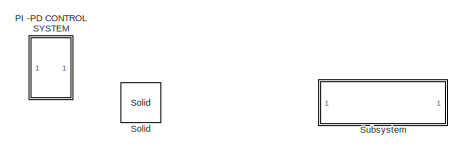
[diagram: root canvas - part 1/2, top right region]
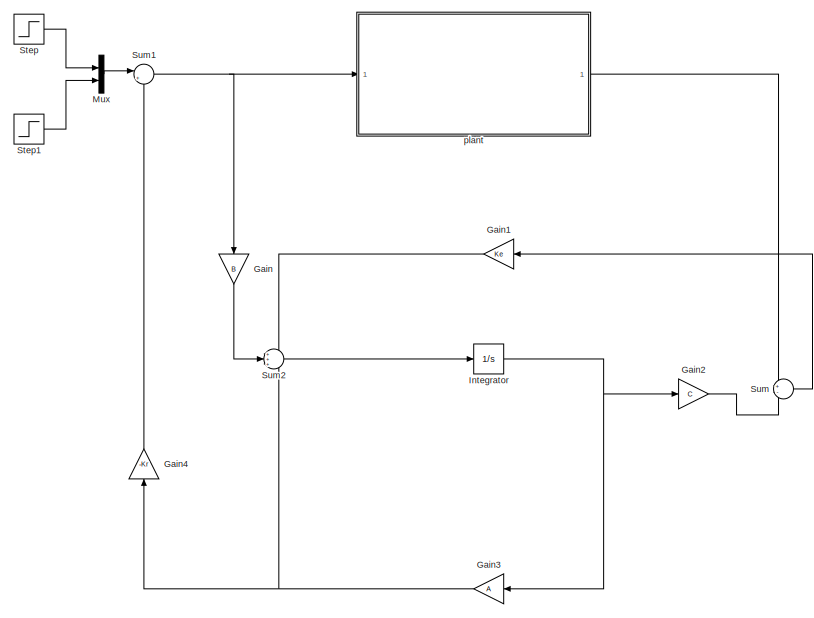
[diagram: root canvas - part 2/2, middle left region]
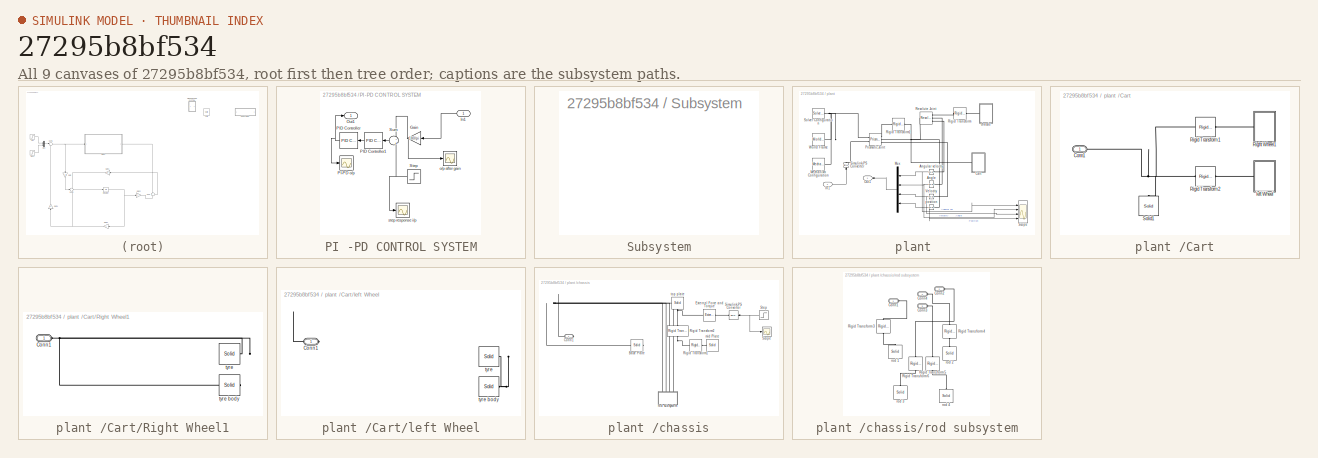
[diagram: thumbnail index - all 9 canvases of the model, root first then tree order]
MODEL slx_27295b8bf534
KIND model
CONFIG AbsTol = auto
CONFIG EnableMultiTasking = on
CONFIG FixedStep = auto
CONFIG MaxStep = auto
CONFIG MinStep = auto
CONFIG RelTol = 1e-3
CONFIG SampleTimeConstraint = Unconstrained
CONFIG Solver = VariableStepAuto
CONFIG SolverName = VariableStepAuto
CONFIG StartTime = 0.0
CONFIG StopTime = 10.0
BLOCK [Gain] Gain
  Gain = B
  Multiplication = Matrix(K*u)
  OutDataTypeStr = Inherit: Inherit via internal rule
  ParamDataTypeStr = Inherit: Inherit via internal rule
  SaturateOnIntegerOverflow = off
BLOCK [Gain] Gain1
  Gain = Ke
  Multiplication = Matrix(K*u)
  OutDataTypeStr = Inherit: Inherit via internal rule
  ParamDataTypeStr = Inherit: Inherit via internal rule
  SaturateOnIntegerOverflow = off
BLOCK [Gain] Gain2
  Gain = C
  Multiplication = Matrix(K*u)
  OutDataTypeStr = Inherit: Inherit via internal rule
  ParamDataTypeStr = Inherit: Inherit via internal rule
  SaturateOnIntegerOverflow = off
BLOCK [Gain] Gain3
  Gain = A
  Multiplication = Matrix(K*u)
  OutDataTypeStr = Inherit: Inherit via internal rule
  ParamDataTypeStr = Inherit: Inherit via internal rule
  SaturateOnIntegerOverflow = off
BLOCK [Gain] Gain4
  Gain = -Kr
  Multiplication = Matrix(K*u)
  OutDataTypeStr = Inherit: Inherit via internal rule
  ParamDataTypeStr = Inherit: Inherit via internal rule
  SaturateOnIntegerOverflow = off
BLOCK [Integrator] Integrator
  Ports = [1, 1]
BLOCK [Mux] Mux
  DisplayOption = bar
  Inputs = 2
  Ports = [2, 1]
BLOCK [SubSystem] PI -PD CONTROL SYSTEM
  Commented = on
  Ports = [1, 1]
  RequestExecContextInheritance = off
BLOCK [Scope] PI -PD CONTROL SYSTEM/	PI-PD o//p
  Floating = off
  NumInputPorts = 1
  Ports = [1]
  ScopeSpecificationString = Simulink.scopes.TimeScopeBlockCfg('CurrentConfiguration', extmgr.ConfigurationSet(extmgr.Configuration('Core','General UI',true),extmgr.Configuration('Core','Source UI',true),extmgr.Configuration('Sources','WiredSimulink',true),extmgr.Configuration('Visuals','Time Domain',true,'SerializedDisplays',{struct('MinYLimReal','-27.44517','MaxYLimReal','29.71613','YLabelReal','','MinYLimMag','0.00000','Ma...<+1353ch>
BLOCK [Gain] PI -PD CONTROL SYSTEM/Gain
  Gain = 180/pi
  OutDataTypeStr = Inherit: Inherit via internal rule
  ParamDataTypeStr = Inherit: Inherit via internal rule
  SaturateOnIntegerOverflow = off
BLOCK [Inport] PI -PD CONTROL SYSTEM/In1
  IconDisplay = Port number
BLOCK [Outport] PI -PD CONTROL SYSTEM/Out1
  IconDisplay = Port number
BLOCK [Reference] PI -PD CONTROL SYSTEM/PID Controller  REF=simulink/Continuous/PID Controller
  Ports = [1, 1]
  SourceBlock = simulink/Continuous/PID Controller
  SourceProductBaseCode = SL
  SourceProductName = Simulink
  SourceType = PID 1dof
BLOCK [Reference] PI -PD CONTROL SYSTEM/PID Controller1  REF=simulink/Continuous/PID Controller
  Ports = [1, 1]
  SourceBlock = simulink/Continuous/PID Controller
  SourceProductBaseCode = SL
  SourceProductName = Simulink
  SourceType = PID 1dof
BLOCK [Step] PI -PD CONTROL SYSTEM/Step
  After = 0
  Before = 1
  SampleTime = 0
  Time = 0.01
BLOCK [Sum] PI -PD CONTROL SYSTEM/Sum
  IconShape = round
  InputSameDT = off
  Inputs = -+
  OutDataTypeStr = Inherit: Inherit via internal rule
  Ports = [2, 1]
  SaturateOnIntegerOverflow = off
BLOCK [Scope] PI -PD CONTROL SYSTEM/o//p after gain 
  Floating = off
  NumInputPorts = 1
  Ports = [1]
  ScopeSpecificationString = Simulink.scopes.TimeScopeBlockCfg('CurrentConfiguration', extmgr.ConfigurationSet(extmgr.Configuration('Core','General UI',true),extmgr.Configuration('Core','Source UI',true),extmgr.Configuration('Sources','WiredSimulink',true,'DataLoggingVariableName','ScopeData2'),extmgr.Configuration('Visuals','Time Domain',true,'SerializedDisplays',{struct('MinYLimReal','-151.46736','MaxYLimReal','16.82971','Y...<+1404ch>
BLOCK [Scope] PI -PD CONTROL SYSTEM/step response i//p
  Floating = off
  NumInputPorts = 1
  Ports = [1]
  ScopeSpecificationString = Simulink.scopes.TimeScopeBlockCfg('CurrentConfiguration', extmgr.ConfigurationSet(extmgr.Configuration('Core','General UI',true),extmgr.Configuration('Core','Source UI',true),extmgr.Configuration('Sources','WiredSimulink',true,'DataLoggingVariableName','ScopeData3'),extmgr.Configuration('Visuals','Time Domain',true,'SerializedDisplays',{struct('MinYLimReal','-0.125','MaxYLimReal','1.125','YLabelRe...<+1351ch>
BLOCK [Reference] Solid  REF=sm_lib/Body Elements/Solid
  Commented = on
  Ports = [0, 0, 0, 0, 0, 0, 1]
  SourceBlock = sm_lib/Body Elements/Solid
  SourceProductBaseCode = MS
  SourceProductName = Simscape Multibody
  SourceType = Solid
BLOCK [Step] Step
  SampleTime = 0
BLOCK [Step] Step1
  SampleTime = 0
BLOCK [SubSystem] Subsystem
  Commented = on
  OpenFcn = open_system('sm_lib')
  Ports = []
  RequestExecContextInheritance = off
  ShowPortLabels = none
BLOCK [Sum] Sum
  IconShape = round
  InputSameDT = off
  Inputs = +-
  OutDataTypeStr = Inherit: Inherit via internal rule
  Ports = [2, 1]
  SaturateOnIntegerOverflow = off
BLOCK [Sum] Sum1
  IconShape = round
  InputSameDT = off
  Inputs = |++
  OutDataTypeStr = Inherit: Inherit via internal rule
  Ports = [2, 1]
  SaturateOnIntegerOverflow = off
BLOCK [Sum] Sum2
  IconShape = round
  InputSameDT = off
  Inputs = +++
  OutDataTypeStr = Inherit: Inherit via internal rule
  Ports = [3, 1]
  SaturateOnIntegerOverflow = off
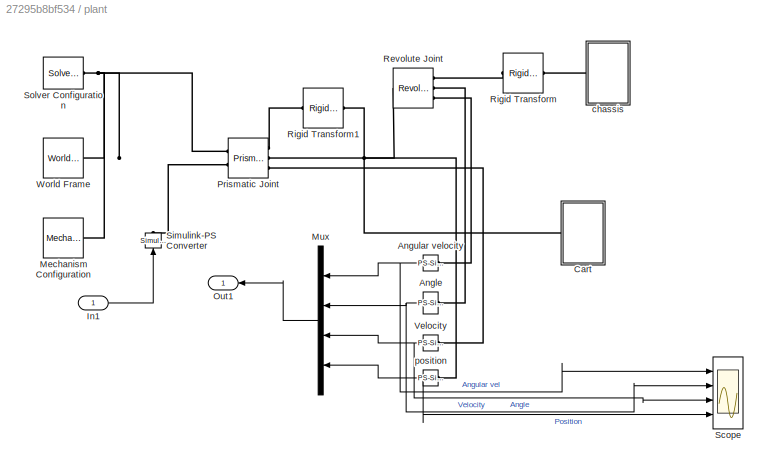
BLOCK [SubSystem] plant 
  Ports = [1, 1]
  RequestExecContextInheritance = off
BLOCK [Reference] plant /Angle  REF=nesl_utility/PS-Simulink
Converter
  Ports = [0, 1, 0, 0, 0, 1]
  SourceBlock = nesl_utility/PS-Simulink\nConverter
  SourceProductBaseCode = SS
  SourceProductName = Simscape
  SourceType = PS-Simulink\nConverter
BLOCK [Reference] plant /Angular velocity  REF=nesl_utility/PS-Simulink
Converter
  Ports = [0, 1, 0, 0, 0, 1]
  SourceBlock = nesl_utility/PS-Simulink\nConverter
  SourceProductBaseCode = SS
  SourceProductName = Simscape
  SourceType = PS-Simulink\nConverter
BLOCK [SubSystem] plant /Cart
  Ports = [0, 0, 0, 0, 0, 1]
  RequestExecContextInheritance = off
BLOCK [PMIOPort] plant /Cart/Conn1
  Side = Left
BLOCK [SubSystem] plant /Cart/Right Wheel1
  Ports = [0, 0, 0, 0, 0, 1]
  RequestExecContextInheritance = off
BLOCK [PMIOPort] plant /Cart/Right Wheel1/Conn1
  Side = Left
BLOCK [Reference] plant /Cart/Right Wheel1/tyre  REF=sm_lib/Body Elements/Solid
  Ports = [0, 0, 0, 0, 0, 0, 1]
  SourceBlock = sm_lib/Body Elements/Solid
  SourceProductBaseCode = MS
  SourceProductName = Simscape Multibody
  SourceType = Solid
BLOCK [Reference] plant /Cart/Right Wheel1/tyre body  REF=sm_lib/Body Elements/Solid
  Ports = [0, 0, 0, 0, 0, 0, 1]
  SourceBlock = sm_lib/Body Elements/Solid
  SourceProductBaseCode = MS
  SourceProductName = Simscape Multibody
  SourceType = Solid
BLOCK [Reference] plant /Cart/Rigid Transform1  REF=sm_lib/Frames and
Transforms/Rigid
Transform
  Ports = [0, 0, 0, 0, 0, 1, 1]
  SourceBlock = sm_lib/Frames and\nTransforms/Rigid\nTransform
  SourceProductBaseCode = MS
  SourceProductName = Simscape Multibody
  SourceType = Rigid\nTransform
BLOCK [Reference] plant /Cart/Rigid Transform2  REF=sm_lib/Frames and
Transforms/Rigid
Transform
  Ports = [0, 0, 0, 0, 0, 1, 1]
  SourceBlock = sm_lib/Frames and\nTransforms/Rigid\nTransform
  SourceProductBaseCode = MS
  SourceProductName = Simscape Multibody
  SourceType = Rigid\nTransform
BLOCK [Reference] plant /Cart/Solid1  REF=sm_lib/Body Elements/Solid
  Ports = [0, 0, 0, 0, 0, 0, 1]
  SourceBlock = sm_lib/Body Elements/Solid
  SourceProductBaseCode = MS
  SourceProductName = Simscape Multibody
  SourceType = Solid
BLOCK [SubSystem] plant /Cart/left Wheel
  Ports = [0, 0, 0, 0, 0, 1]
  RequestExecContextInheritance = off
BLOCK [PMIOPort] plant /Cart/left Wheel/Conn1
  Side = Left
BLOCK [Reference] plant /Cart/left Wheel/tyre  REF=sm_lib/Body Elements/Solid
  Ports = [0, 0, 0, 0, 0, 0, 1]
  SourceBlock = sm_lib/Body Elements/Solid
  SourceProductBaseCode = MS
  SourceProductName = Simscape Multibody
  SourceType = Solid
BLOCK [Reference] plant /Cart/left Wheel/tyre body  REF=sm_lib/Body Elements/Solid
  Ports = [0, 0, 0, 0, 0, 0, 1]
  SourceBlock = sm_lib/Body Elements/Solid
  SourceProductBaseCode = MS
  SourceProductName = Simscape Multibody
  SourceType = Solid
BLOCK [Inport] plant /In1
  IconDisplay = Port number
BLOCK [Reference] plant /Mechanism Configuration  REF=sm_lib/Utilities/Mechanism
Configuration
  Ports = [0, 0, 0, 0, 0, 0, 1]
  SourceBlock = sm_lib/Utilities/Mechanism\nConfiguration
  SourceProductBaseCode = MS
  SourceProductName = Simscape Multibody
  SourceType = Mechanism\nConfiguration
BLOCK [Mux] plant /Mux
  DisplayOption = bar
  Ports = [4, 1]
BLOCK [Outport] plant /Out1
  IconDisplay = Port number
BLOCK [Reference] plant /Prismatic Joint  REF=sm_lib/Joints/Prismatic
Joint
  Ports = [0, 0, 0, 0, 0, 2, 3]
  SourceBlock = sm_lib/Joints/Prismatic\nJoint
  SourceProductBaseCode = MS
  SourceProductName = Simscape Multibody
  SourceType = Prismatic\nJoint
BLOCK [Reference] plant /Revolute Joint  REF=sm_lib/Joints/Revolute Joint
  Ports = [0, 0, 0, 0, 0, 1, 3]
  SourceBlock = sm_lib/Joints/Revolute Joint
  SourceProductBaseCode = MS
  SourceProductName = Simscape Multibody
  SourceType = Revolute Joint
BLOCK [Reference] plant /Rigid Transform  REF=sm_lib/Frames and
Transforms/Rigid
Transform
  Ports = [0, 0, 0, 0, 0, 1, 1]
  SourceBlock = sm_lib/Frames and\nTransforms/Rigid\nTransform
  SourceProductBaseCode = MS
  SourceProductName = Simscape Multibody
  SourceType = Rigid\nTransform
BLOCK [Reference] plant /Rigid Transform1  REF=sm_lib/Frames and
Transforms/Rigid
Transform
  Ports = [0, 0, 0, 0, 0, 1, 1]
  SourceBlock = sm_lib/Frames and\nTransforms/Rigid\nTransform
  SourceProductBaseCode = MS
  SourceProductName = Simscape Multibody
  SourceType = Rigid\nTransform
BLOCK [Scope] plant /Scope
  Floating = off
  NumInputPorts = 4
  Ports = [4]
  ScopeSpecificationString = Simulink.scopes.TimeScopeBlockCfg('CurrentConfiguration', extmgr.ConfigurationSet(extmgr.Configuration('Core','General UI',true),extmgr.Configuration('Core','Source UI',true),extmgr.Configuration('Sources','WiredSimulink',true,'DataLoggingVariableName','ScopeData1'),extmgr.Configuration('Visuals','Time Domain',true,'SerializedDisplays',{struct('MinYLimReal','-10','MaxYLimReal','10','YLabelReal',''...<+2991ch>
BLOCK [Reference] plant /Simulink-PS Converter  REF=nesl_utility/Simulink-PS
Converter
  Ports = [1, 0, 0, 0, 0, 0, 1]
  SourceBlock = nesl_utility/Simulink-PS\nConverter
  SourceProductBaseCode = SS
  SourceProductName = Simscape
  SourceType = Simulink-PS\nConverter
BLOCK [Reference] plant /Solver Configuration  REF=nesl_utility/Solver
Configuration
  Ports = [0, 0, 0, 0, 0, 0, 1]
  SourceBlock = nesl_utility/Solver\nConfiguration
  SourceProductBaseCode = SS
  SourceProductName = Simscape
  SourceType = Solver\nConfiguration
BLOCK [Reference] plant /Velocity  REF=nesl_utility/PS-Simulink
Converter
  Ports = [0, 1, 0, 0, 0, 1]
  SourceBlock = nesl_utility/PS-Simulink\nConverter
  SourceProductBaseCode = SS
  SourceProductName = Simscape
  SourceType = PS-Simulink\nConverter
BLOCK [Reference] plant /World Frame  REF=sm_lib/Frames and
Transforms/World Frame
  Ports = [0, 0, 0, 0, 0, 0, 1]
  SourceBlock = sm_lib/Frames and\nTransforms/World Frame
  SourceProductBaseCode = MS
  SourceProductName = Simscape Multibody
  SourceType = World Frame
BLOCK [SubSystem] plant /chassis
  Ports = [0, 0, 0, 0, 0, 1]
  RequestExecContextInheritance = off
BLOCK [Reference] plant /chassis/Base Plate  REF=sm_lib/Body Elements/Solid
  Ports = [0, 0, 0, 0, 0, 0, 1]
  SourceBlock = sm_lib/Body Elements/Solid
  SourceProductBaseCode = MS
  SourceProductName = Simscape Multibody
  SourceType = Solid
BLOCK [PMIOPort] plant /chassis/Conn1
  Side = Left
BLOCK [Reference] plant /chassis/External Force and Torque  REF=sm_lib/Forces and
Torques/External Force
and Torque
  Commented = on
  Ports = [0, 0, 0, 0, 0, 1, 1]
  SourceBlock = sm_lib/Forces and\nTorques/External Force\nand Torque
  SourceProductBaseCode = MS
  SourceProductName = Simscape Multibody
  SourceType = External Force\nand Torque
BLOCK [Reference] plant /chassis/Rigid Transform1  REF=sm_lib/Frames and
Transforms/Rigid
Transform
  Ports = [0, 0, 0, 0, 0, 1, 1]
  SourceBlock = sm_lib/Frames and\nTransforms/Rigid\nTransform
  SourceProductBaseCode = MS
  SourceProductName = Simscape Multibody
  SourceType = Rigid\nTransform
BLOCK [Reference] plant /chassis/Rigid Transform2  REF=sm_lib/Frames and
Transforms/Rigid
Transform
  Ports = [0, 0, 0, 0, 0, 1, 1]
  SourceBlock = sm_lib/Frames and\nTransforms/Rigid\nTransform
  SourceProductBaseCode = MS
  SourceProductName = Simscape Multibody
  SourceType = Rigid\nTransform
BLOCK [Scope] plant /chassis/Scope
  Commented = on
  Floating = off
  NumInputPorts = 1
  Ports = [1]
  ScopeSpecificationString = Simulink.scopes.TimeScopeBlockCfg('CurrentConfiguration', extmgr.ConfigurationSet(extmgr.Configuration('Core','General UI',true),extmgr.Configuration('Core','Source UI',true),extmgr.Configuration('Sources','WiredSimulink',true,'DataLoggingVariableName','ScopeData1'),extmgr.Configuration('Visuals','Time Domain',true,'SerializedDisplays',{struct('MinYLimReal','-0.125','MaxYLimReal','1.125','YLabelRe...<+1351ch>
BLOCK [Reference] plant /chassis/Simulink-PS Converter  REF=nesl_utility/Simulink-PS
Converter
  Commented = on
  Ports = [1, 0, 0, 0, 0, 0, 1]
  SourceBlock = nesl_utility/Simulink-PS\nConverter
  SourceProductBaseCode = SS
  SourceProductName = Simscape
  SourceType = Simulink-PS\nConverter
BLOCK [Step] plant /chassis/Step
  After = 0
  Before = 1
  Commented = on
  SampleTime = 0
  Time = 0.01
BLOCK [Reference] plant /chassis/mid Plate  REF=sm_lib/Body Elements/Solid
  Ports = [0, 0, 0, 0, 0, 0, 1]
  SourceBlock = sm_lib/Body Elements/Solid
  SourceProductBaseCode = MS
  SourceProductName = Simscape Multibody
  SourceType = Solid
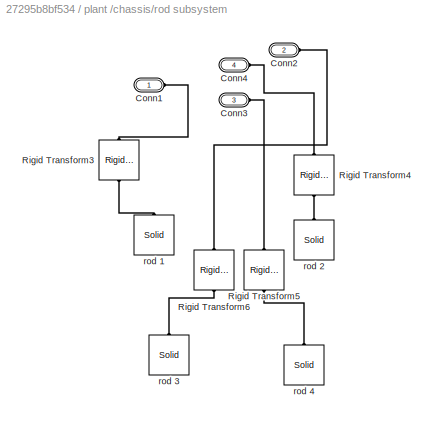
BLOCK [SubSystem] plant /chassis/rod subsystem
  Ports = [0, 0, 0, 0, 0, 4]
  RequestExecContextInheritance = off
BLOCK [PMIOPort] plant /chassis/rod subsystem/Conn1
  Side = Left
BLOCK [PMIOPort] plant /chassis/rod subsystem/Conn2
  Port = 2
  Side = Left
BLOCK [PMIOPort] plant /chassis/rod subsystem/Conn3
  Port = 3
  Side = Left
BLOCK [PMIOPort] plant /chassis/rod subsystem/Conn4
  Port = 4
  Side = Left
BLOCK [Reference] plant /chassis/rod subsystem/Rigid Transform3  REF=sm_lib/Frames and
Transforms/Rigid
Transform
  Ports = [0, 0, 0, 0, 0, 1, 1]
  SourceBlock = sm_lib/Frames and\nTransforms/Rigid\nTransform
  SourceProductBaseCode = MS
  SourceProductName = Simscape Multibody
  SourceType = Rigid\nTransform
BLOCK [Reference] plant /chassis/rod subsystem/Rigid Transform4  REF=sm_lib/Frames and
Transforms/Rigid
Transform
  Ports = [0, 0, 0, 0, 0, 1, 1]
  SourceBlock = sm_lib/Frames and\nTransforms/Rigid\nTransform
  SourceProductBaseCode = MS
  SourceProductName = Simscape Multibody
  SourceType = Rigid\nTransform
BLOCK [Reference] plant /chassis/rod subsystem/Rigid Transform5  REF=sm_lib/Frames and
Transforms/Rigid
Transform
  Ports = [0, 0, 0, 0, 0, 1, 1]
  SourceBlock = sm_lib/Frames and\nTransforms/Rigid\nTransform
  SourceProductBaseCode = MS
  SourceProductName = Simscape Multibody
  SourceType = Rigid\nTransform
BLOCK [Reference] plant /chassis/rod subsystem/Rigid Transform6  REF=sm_lib/Frames and
Transforms/Rigid
Transform
  Ports = [0, 0, 0, 0, 0, 1, 1]
  SourceBlock = sm_lib/Frames and\nTransforms/Rigid\nTransform
  SourceProductBaseCode = MS
  SourceProductName = Simscape Multibody
  SourceType = Rigid\nTransform
BLOCK [Reference] plant /chassis/rod subsystem/rod 1  REF=sm_lib/Body Elements/Solid
  Ports = [0, 0, 0, 0, 0, 0, 1]
  SourceBlock = sm_lib/Body Elements/Solid
  SourceProductBaseCode = MS
  SourceProductName = Simscape Multibody
  SourceType = Solid
BLOCK [Reference] plant /chassis/rod subsystem/rod 2  REF=sm_lib/Body Elements/Solid
  Ports = [0, 0, 0, 0, 0, 0, 1]
  SourceBlock = sm_lib/Body Elements/Solid
  SourceProductBaseCode = MS
  SourceProductName = Simscape Multibody
  SourceType = Solid
BLOCK [Reference] plant /chassis/rod subsystem/rod 3  REF=sm_lib/Body Elements/Solid
  Ports = [0, 0, 0, 0, 0, 0, 1]
  SourceBlock = sm_lib/Body Elements/Solid
  SourceProductBaseCode = MS
  SourceProductName = Simscape Multibody
  SourceType = Solid
BLOCK [Reference] plant /chassis/rod subsystem/rod 4  REF=sm_lib/Body Elements/Solid
  Ports = [0, 0, 0, 0, 0, 0, 1]
  SourceBlock = sm_lib/Body Elements/Solid
  SourceProductBaseCode = MS
  SourceProductName = Simscape Multibody
  SourceType = Solid
BLOCK [Reference] plant /chassis/top plate  REF=sm_lib/Body Elements/Solid
  Ports = [0, 0, 0, 0, 0, 0, 1]
  SourceBlock = sm_lib/Body Elements/Solid
  SourceProductBaseCode = MS
  SourceProductName = Simscape Multibody
  SourceType = Solid
BLOCK [Reference] plant /position  REF=nesl_utility/PS-Simulink
Converter
  Ports = [0, 1, 0, 0, 0, 1]
  SourceBlock = nesl_utility/PS-Simulink\nConverter
  SourceProductBaseCode = SS
  SourceProductName = Simscape
  SourceType = PS-Simulink\nConverter
LINE Gain1:1 -> Sum2:1
LINE Gain2:1 -> Sum:2
NET Gain3:1 -> Gain4:1, Sum2:3
LINE Gain4:1 -> Sum1:2
LINE Gain:1 -> Sum2:2
NET Integrator:1 -> Gain2:1, Gain3:1
LINE Mux:1 -> Sum1:1
NET PI -PD CONTROL SYSTEM/Gain:1 -> PI -PD CONTROL SYSTEM/Sum:1, PI -PD CONTROL SYSTEM/o//p after gain :1
LINE PI -PD CONTROL SYSTEM/In1:1 -> PI -PD CONTROL SYSTEM/Gain:1
LINE PI -PD CONTROL SYSTEM/PID Controller1:1 -> PI -PD CONTROL SYSTEM/PID Controller:1
NET PI -PD CONTROL SYSTEM/PID Controller:1 -> PI -PD CONTROL SYSTEM/	PI-PD o//p:1, PI -PD CONTROL SYSTEM/Out1:1
NET PI -PD CONTROL SYSTEM/Step:1 -> PI -PD CONTROL SYSTEM/Sum:2, PI -PD CONTROL SYSTEM/step response i//p:1
LINE PI -PD CONTROL SYSTEM/Sum:1 -> PI -PD CONTROL SYSTEM/PID Controller1:1
LINE Step1:1 -> Mux:2
LINE Step:1 -> Mux:1
NET Sum1:1 -> Gain:1, plant :1
LINE Sum2:1 -> Integrator:1
LINE Sum:1 -> Gain1:1
NET plant /Angle:1 -> plant /Mux:2, plant /Scope:2
NET plant /Angular velocity:1 -> plant /Mux:1, plant /Scope:1
LINE plant /In1:1 -> plant /Simulink-PS Converter:1
LINE plant /Mux:1 -> plant /Out1:1
NET plant /Velocity:1 -> plant /Mux:3, plant /Scope:3
NET plant /chassis/Step:1 -> plant /chassis/Scope:1, plant /chassis/Simulink-PS Converter:1
NET plant /position:1 -> plant /Mux:4, plant /Scope:4
LINE plant :1 -> Sum:1
PLINE plant /Angle:LConn1 -- plant /Revolute Joint:RConn2
PLINE plant /Angular velocity:LConn1 -- plant /Revolute Joint:RConn3
PNET net1: plant /Cart/Conn1:RConn1 -- plant /Cart/Rigid Transform1:LConn1 -- plant /Cart/Rigid Transform2:LConn1 -- plant /Cart/Solid1:RConn1
PNET net2: plant /Cart/Right Wheel1/Conn1:RConn1 -- plant /Cart/Right Wheel1/tyre body:RConn1 -- plant /Cart/Right Wheel1/tyre:RConn1
PLINE plant /Cart/Right Wheel1:LConn1 -- plant /Cart/Rigid Transform1:RConn1
PLINE plant /Cart/Rigid Transform2:RConn1 -- plant /Cart/left Wheel:LConn1
PNET net3: plant /Cart/left Wheel/Conn1:RConn1 -- plant /Cart/left Wheel/tyre body:RConn1 -- plant /Cart/left Wheel/tyre:RConn1
PNET net4: plant /Cart:LConn1 -- plant /Revolute Joint:LConn1 -- plant /Rigid Transform1:RConn1
PNET net5: plant /Mechanism Configuration:RConn1 -- plant /Prismatic Joint:LConn1 -- plant /Solver Configuration:RConn1 -- plant /World Frame:RConn1
PLINE plant /Prismatic Joint:LConn2 -- plant /Simulink-PS Converter:RConn1
PLINE plant /Prismatic Joint:RConn1 -- plant /Rigid Transform1:LConn1
PLINE plant /Prismatic Joint:RConn2 -- plant /position:LConn1
PLINE plant /Prismatic Joint:RConn3 -- plant /Velocity:LConn1
PLINE plant /Revolute Joint:RConn1 -- plant /Rigid Transform:LConn1
PLINE plant /Rigid Transform:RConn1 -- plant /chassis:LConn1
PNET net6: plant /chassis/Base Plate:RConn1 -- plant /chassis/Conn1:RConn1 -- plant /chassis/Rigid Transform1:LConn1 -- plant /chassis/Rigid Transform2:LConn1 -- plant /chassis/rod subsystem:LConn1 -- plant /chassis/rod subsystem:LConn2 -- plant /chassis/rod subsystem:LConn3 -- plant /chassis/rod subsystem:LConn4
PLINE plant /chassis/External Force and Torque:LConn1 -- plant /chassis/Simulink-PS Converter:RConn1
PNET net7: plant /chassis/External Force and Torque:RConn1 -- plant /chassis/Rigid Transform2:RConn1 -- plant /chassis/top plate:RConn1
PLINE plant /chassis/Rigid Transform1:RConn1 -- plant /chassis/mid Plate:RConn1
PLINE plant /chassis/rod subsystem/Conn1:RConn1 -- plant /chassis/rod subsystem/Rigid Transform3:LConn1
PLINE plant /chassis/rod subsystem/Conn2:RConn1 -- plant /chassis/rod subsystem/Rigid Transform6:LConn1
PLINE plant /chassis/rod subsystem/Conn3:RConn1 -- plant /chassis/rod subsystem/Rigid Transform5:LConn1
PLINE plant /chassis/rod subsystem/Conn4:RConn1 -- plant /chassis/rod subsystem/Rigid Transform4:LConn1
PLINE plant /chassis/rod subsystem/Rigid Transform3:RConn1 -- plant /chassis/rod subsystem/rod 1:RConn1
PLINE plant /chassis/rod subsystem/Rigid Transform4:RConn1 -- plant /chassis/rod subsystem/rod 2:RConn1
PLINE plant /chassis/rod subsystem/Rigid Transform5:RConn1 -- plant /chassis/rod subsystem/rod 4:RConn1
PLINE plant /chassis/rod subsystem/Rigid Transform6:RConn1 -- plant /chassis/rod subsystem/rod 3:RConn1
note: NET lines group one-source signal fan-out (src -> all destinations, sorted); 1:1 wires keep LINE; PNET lines group multi-terminal physical nets as a canonical sorted terminal list (undirected conserving connections); 2-terminal nets keep the pairwise PLINE form
